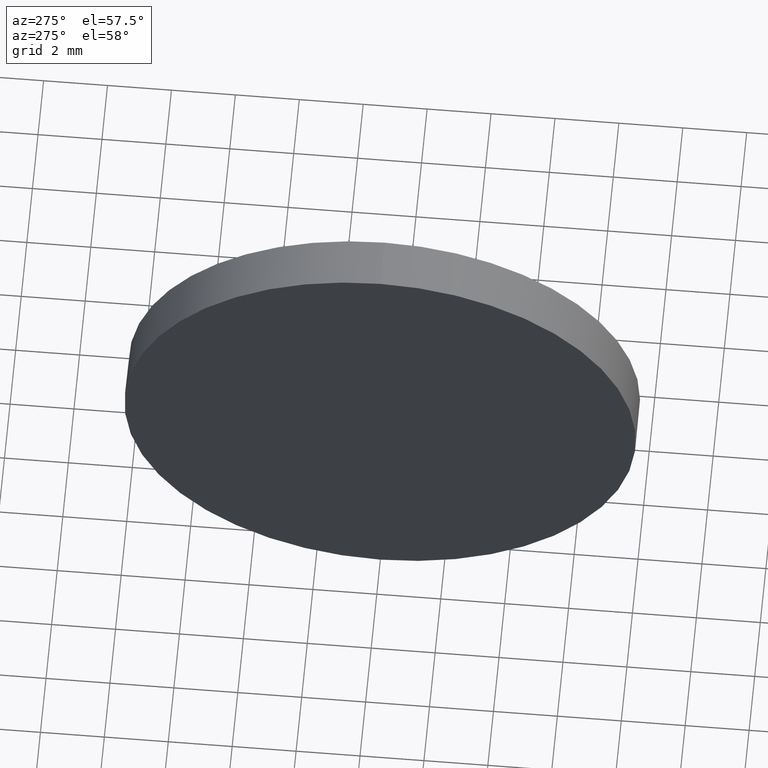
[diagram: clean part render]
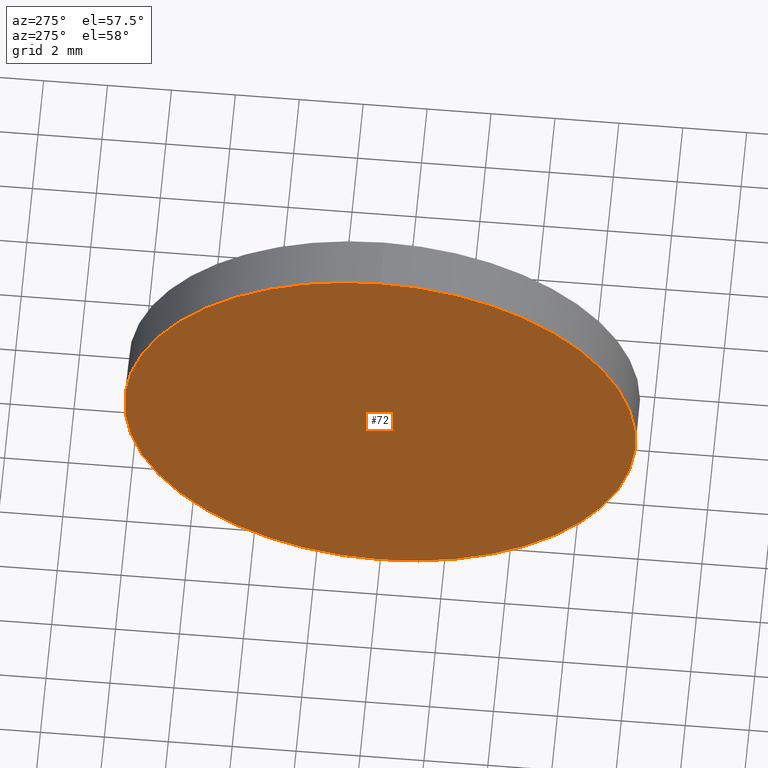
[diagram: same view with one face highlighted and labeled with its STEP entity id]
A machine part, auxiliary view. The second image highlights one B-rep face of the part: STEP entity #72.
In plain terms, the highlighted planar face has unit normal (1, 0, 0).
Its self-contained STEP definition (entity closure, byte-faithful):
#4 = DIRECTION ( 'NONE',  ( 0.0000000000000000000, 0.0000000000000000000, 1.000000000000000000 ) ) ;
#15 = EDGE_CURVE ( 'NONE', #52, #131, #73, .T. ) ;
#19 = AXIS2_PLACEMENT_3D ( 'NONE', #140, #180, #38 ) ;
#29 = PLANE ( 'NONE',  #19 ) ;
#38 = DIRECTION ( 'NONE',  ( 0.0000000000000000000, 0.0000000000000000000, -1.000000000000000000 ) ) ;
#52 = VERTEX_POINT ( 'NONE', #141 ) ;
#54 = AXIS2_PLACEMENT_3D ( 'NONE', #126, #172, #77 ) ;
#67 = CARTESIAN_POINT ( 'NONE',  ( 683.0635508571372200, 205.9901794315100300, 0.0000000000000000000 ) ) ;
#72 = ADVANCED_FACE ( 'NONE', ( #76 ), #29, .F. ) ;
#73 = CIRCLE ( 'NONE', #54, 7.999999999999979600 ) ;
#76 = FACE_OUTER_BOUND ( 'NONE', #117, .T. ) ;
#77 = DIRECTION ( 'NONE',  ( 0.0000000000000000000, 0.0000000000000000000, 1.000000000000000000 ) ) ;
#82 = DIRECTION ( 'NONE',  ( -1.000000000000000000, -0.0000000000000000000, -0.0000000000000000000 ) ) ;
#84 = ORIENTED_EDGE ( 'NONE', *, *, #15, .T. ) ;
#97 = EDGE_CURVE ( 'NONE', #131, #52, #107, .T. ) ;
#107 = CIRCLE ( 'NONE', #112, 7.999999999999979600 ) ;
#112 = AXIS2_PLACEMENT_3D ( 'NONE', #67, #82, #4 ) ;
#117 = EDGE_LOOP ( 'NONE', ( #147, #84 ) ) ;
#126 = CARTESIAN_POINT ( 'NONE',  ( 683.0635508571372200, 205.9901794315100300, 0.0000000000000000000 ) ) ;
#131 = VERTEX_POINT ( 'NONE', #166 ) ;
#140 = CARTESIAN_POINT ( 'NONE',  ( 683.0635508571372200, 205.9901794315100300, 0.0000000000000000000 ) ) ;
#141 = CARTESIAN_POINT ( 'NONE',  ( 683.0635508571372200, 205.9901794315100300, -7.999999999999979600 ) ) ;
#147 = ORIENTED_EDGE ( 'NONE', *, *, #97, .T. ) ;
#166 = CARTESIAN_POINT ( 'NONE',  ( 683.0635508571372200, 205.9901794315100300, 7.999999999999979600 ) ) ;
#172 = DIRECTION ( 'NONE',  ( -1.000000000000000000, -0.0000000000000000000, -0.0000000000000000000 ) ) ;
#180 = DIRECTION ( 'NONE',  ( 1.000000000000000000, 0.0000000000000000000, 0.0000000000000000000 ) ) ;